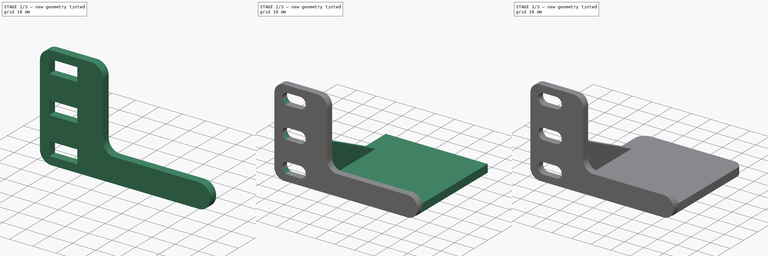
[diagram: build sequence overview — one tinted view per stage of 3, left to right]
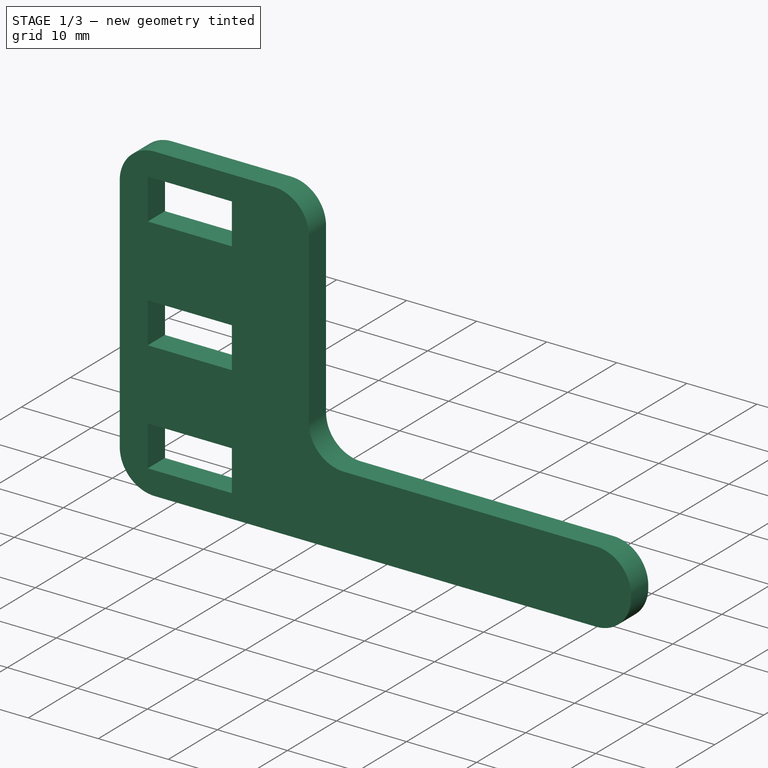
[diagram: stage 1 of 3 — iso view after this stage's code; geometry added in this stage tinted green]
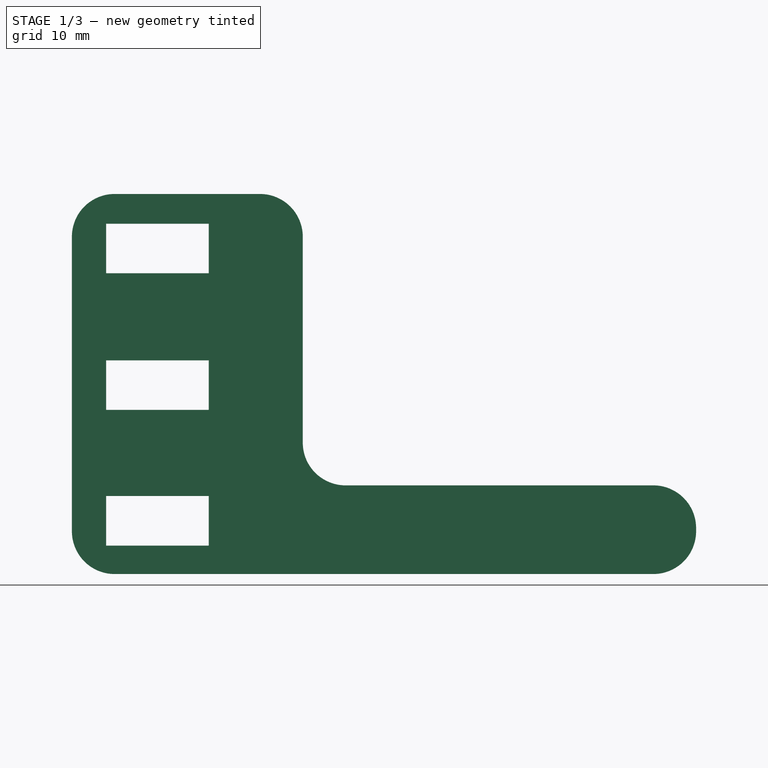
[diagram: stage 1 of 3 — front view after this stage's code; geometry added in this stage tinted green]
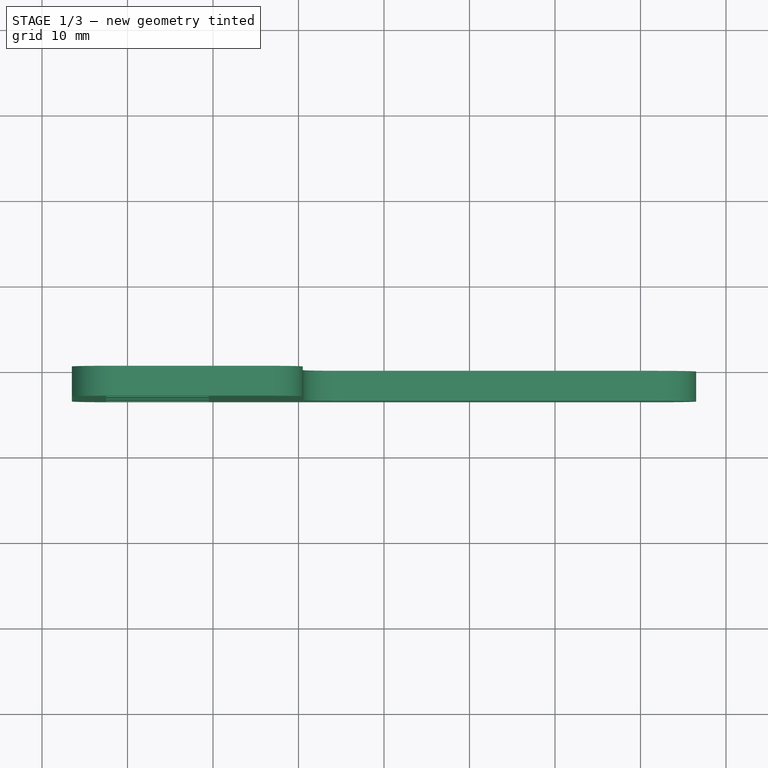
[diagram: stage 1 of 3 — top view after this stage's code; geometry added in this stage tinted green]
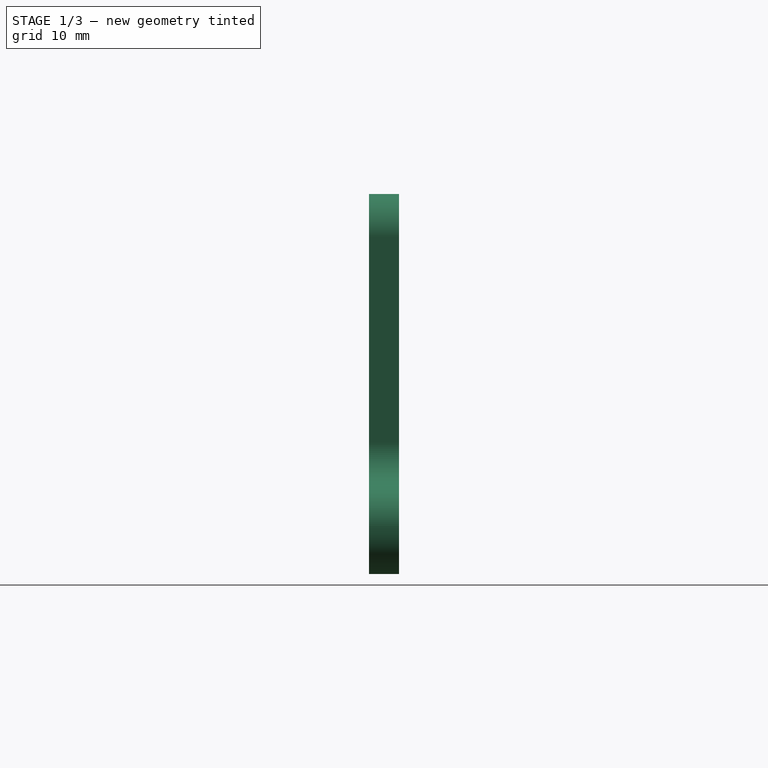
[diagram: stage 1 of 3 — right view after this stage's code; geometry added in this stage tinted green]
FCSTD DOCUMENT  (FreeCAD 1.0R39285 (Git))
Label: rack-mount-holder
License: All rights reserved
LicenseURL: http://en.wikipedia.org/wiki/All_rights_reserved
objects: Sketcher::SketchObject×3, Part::Extrusion×3, Part::Fillet×3, Part::Compound×1
note: 13 computed .brp shape members not serialized (recipe doc carries the construction recipe); baked Part::Feature solids carry a one-line shape summary decoded from their .brp

FEATURE [Part::Extrusion] Extrude
  Base = -> Sketch
  Dir = (0,-1,2e-16)
  DirMode = 2
  FaceMakerClass = Part::FaceMakerBullseye
  FaceMakerMode = 3
  LengthFwd = 3.5
  LengthRev = 0
  Solid = true
  Symmetric = false
FEATURE [Part::Fillet] Fillet  label="Round Outer"
  Base = -> Extrude
  EdgeLinks = -> Extrude [?Edge1,?Edge2,?Edge5,?Edge8,?Edge11,?Edge14]
  Edges = 6 edges r=5: [Edge1,Edge2,Edge5,Edge8,Edge11,Edge14]
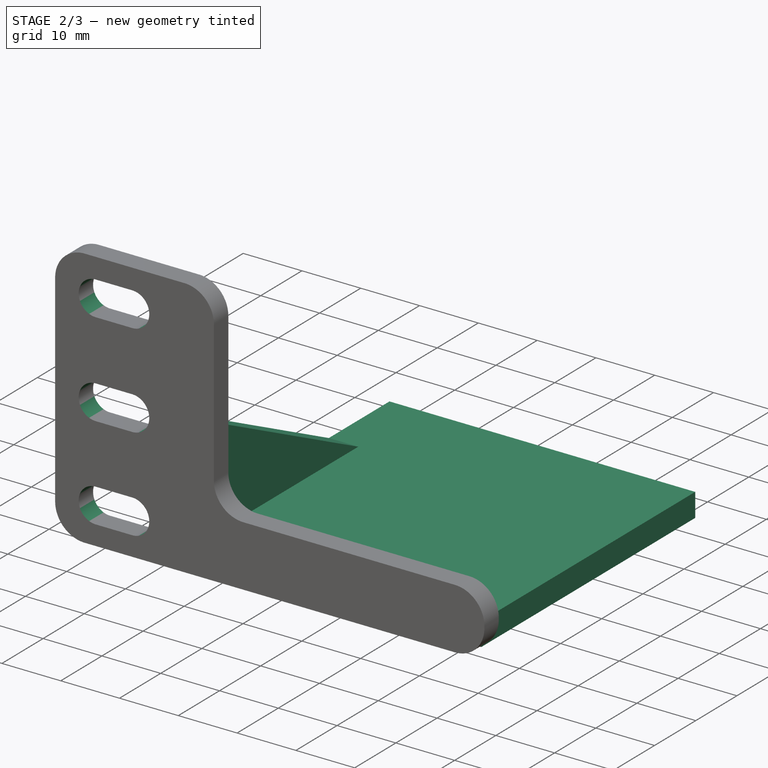
[diagram: stage 2 of 3 — iso view after this stage's code; geometry added in this stage tinted green]
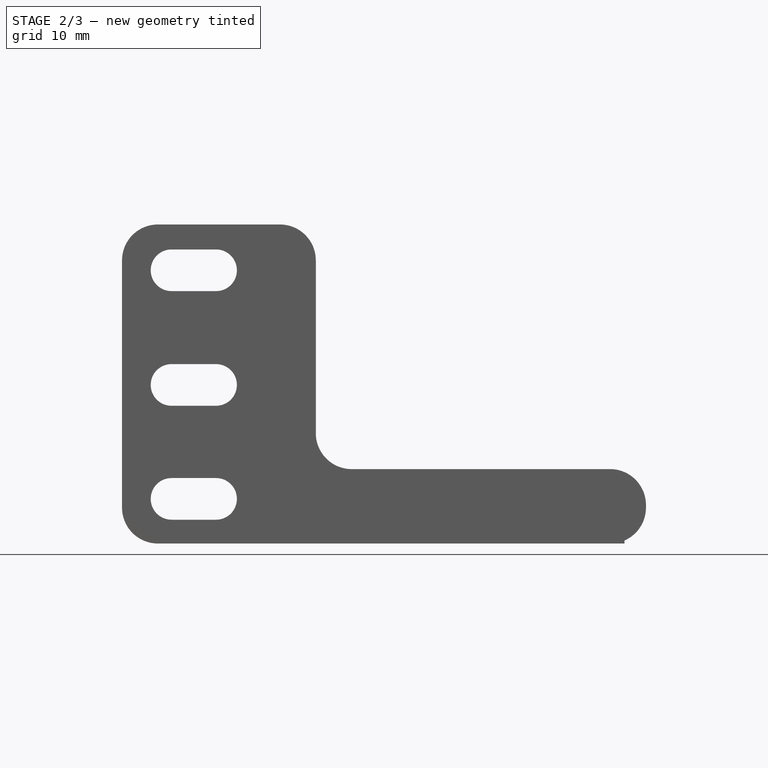
[diagram: stage 2 of 3 — front view after this stage's code; geometry added in this stage tinted green]
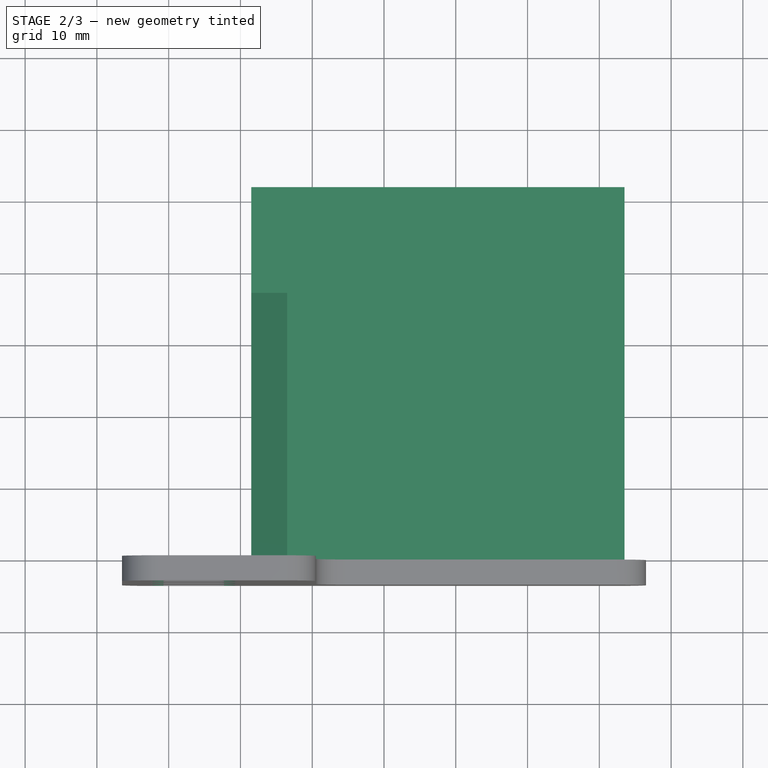
[diagram: stage 2 of 3 — top view after this stage's code; geometry added in this stage tinted green]
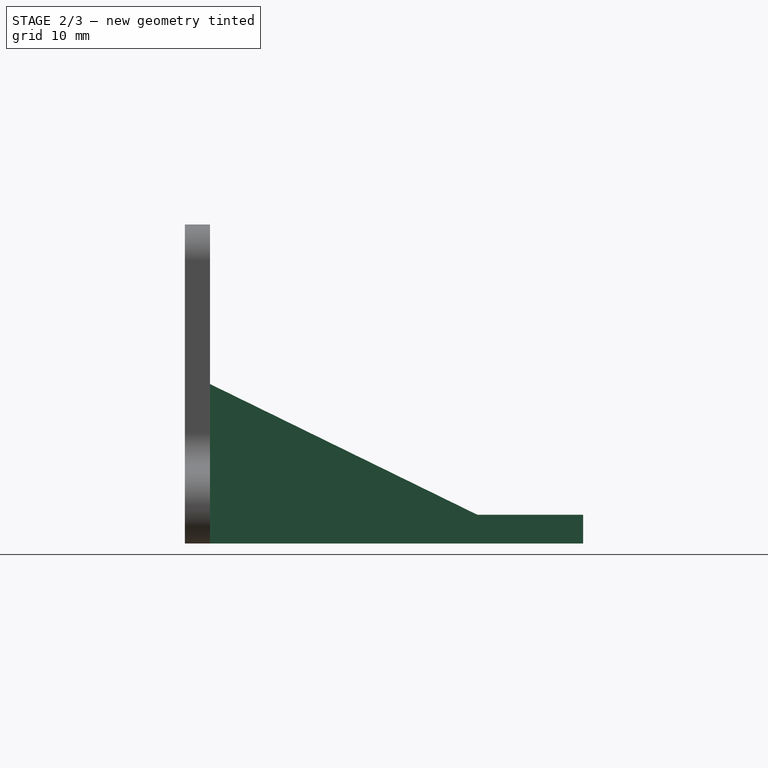
[diagram: stage 2 of 3 — right view after this stage's code; geometry added in this stage tinted green]
FEATURE [Sketcher::SketchObject] Sketch
  ArcFitTolerance = 0
  FullyConstrained = true
  MakeInternals = false
  Placement = pos=(0,0,0) rot=(1,0,0;1.5708rad)
  sketch-geometry (24):
    g0: GeomPoint [constr] X=0 Y=0 Z=0
    g1: LineSegment StartX=-32.5 StartY=18.745 StartZ=0 EndX=-20.5 EndY=18.745 EndZ=0
    g2: LineSegment StartX=-20.5 StartY=18.745 StartZ=0 EndX=-20.5 EndY=12.945 EndZ=0
    g3: LineSegment StartX=-20.5 StartY=12.945 StartZ=0 EndX=-32.5 EndY=12.945 EndZ=0
    g4: LineSegment StartX=-32.5 StartY=12.945 StartZ=0 EndX=-32.5 EndY=18.745 EndZ=0
    g5: LineSegment StartX=-32.5 StartY=2.77 StartZ=0 EndX=-20.5 EndY=2.77 EndZ=0
    g6: LineSegment StartX=-20.5 StartY=2.77 StartZ=0 EndX=-20.5 EndY=-3.03 EndZ=0
    g7: LineSegment StartX=-20.5 StartY=-3.03 StartZ=0 EndX=-32.5 EndY=-3.03 EndZ=0
    g8: LineSegment StartX=-32.5 StartY=-3.03 StartZ=0 EndX=-32.5 EndY=2.77 EndZ=0
    g9: LineSegment StartX=-32.5 StartY=-13.105 StartZ=0 EndX=-20.5 EndY=-13.105 EndZ=0
    g10: LineSegment StartX=-20.5 StartY=-13.105 StartZ=0 EndX=-20.5 EndY=-18.905 EndZ=0
    g11: LineSegment StartX=-20.5 StartY=-18.905 StartZ=0 EndX=-32.5 EndY=-18.905 EndZ=0
    g12: LineSegment StartX=-32.5 StartY=-18.905 StartZ=0 EndX=-32.5 EndY=-13.105 EndZ=0
    g13: LineSegment [constr] StartX=-36.5 StartY=22.225 StartZ=0 EndX=-36.5 EndY=-22.225 EndZ=0
    g14: LineSegment [constr] StartX=-36.5 StartY=-22.225 StartZ=0 EndX=36.5 EndY=-22.225 EndZ=0
    g15: LineSegment [constr] StartX=36.5 StartY=-22.225 StartZ=0 EndX=36.5 EndY=22.225 EndZ=0
    g16: LineSegment [constr] StartX=36.5 StartY=22.225 StartZ=0 EndX=-36.5 EndY=22.225 EndZ=0
    g17: GeomPoint [constr] X=0 Y=0 Z=0
    g18: LineSegment StartX=-9.5 StartY=22.225 StartZ=0 EndX=-9.5 EndY=-11.855 EndZ=0
    g19: LineSegment StartX=-9.5 StartY=-11.855 StartZ=0 EndX=36.5 EndY=-11.855 EndZ=0
    g20: LineSegment StartX=36.5 StartY=-11.855 StartZ=0 EndX=36.5 EndY=-22.225 EndZ=0
    g21: LineSegment StartX=36.5 StartY=-22.225 StartZ=0 EndX=-36.5 EndY=-22.225 EndZ=0
    g22: LineSegment StartX=-36.5 StartY=-22.225 StartZ=0 EndX=-36.5 EndY=22.225 EndZ=0
    g23: LineSegment StartX=-36.5 StartY=22.225 StartZ=0 EndX=-9.5 EndY=22.225 EndZ=0
  constraints (66):
    c: Coincident(g0,g-1)
    c: Coincident(g1,g2)
    c: Coincident(g2,g3)
    c: Coincident(g3,g4)
    c: Coincident(g4,g1)
    c: Horizontal(g1)
    c: Horizontal(g3)
    c: Vertical(g2)
    c: Vertical(g4)
    c: Coincident(g5,g6)
    c: Coincident(g6,g7)
    c: Coincident(g7,g8)
    c: Coincident(g8,g5)
    c: Horizontal(g5)
    c: Horizontal(g7)
    c: Vertical(g6)
    c: Vertical(g8)
    c: Coincident(g9,g10)
    c: Coincident(g10,g11)
    c: Coincident(g11,g12)
    c: Coincident(g12,g9)
    c: Horizontal(g9)
    c: Horizontal(g11)
    c: Vertical(g10)
    c: Vertical(g12)
    c: Distance(g1) = 12
    c: Distance(g4) = 5.8
    c: Equal(g5,g1)
    c: Equal(g9,g5)
    c: Equal(g8,g4)
    c: Equal(g12,g8)
    c: DistanceX(g3,g5) = 0
    c: DistanceX(g9,g7) = 0
    c: Distance(g5,g3) = 10.175
    c: Distance(g9,g7) = 10.075
    c: Coincident(g13,g14)
    c: Coincident(g14,g15)
    c: Coincident(g15,g16)
    c: Coincident(g16,g13)
    c: Horizontal(g14)
    c: Horizontal(g16)
    c: Vertical(g13)
    c: Vertical(g15)
    c: Symmetric(g14,g13,g17)
    c: Coincident(g17,g0)
    c: Distance(g15) = 44.45
    c: Distance(g16) = 73
    c: DistanceX(g13,g1) = 4
    c: DistanceY(g1,g13) = 3.48
    c: PointOnObject(g18,g16)
    c: Vertical(g18)
    c: Coincident(g19,g18)
    c: PointOnObject(g19,g15)
    c: Horizontal(g19)
    c: Coincident(g20,g19)
    c: Distance(g19) = 46
    c: Distance(g18) = 34.08
    c: Coincident(g21,g14)
    c: Horizontal(g21)
    c: Distance(g21) = 73
    c: Coincident(g22,g21)
    c: Vertical(g22)
    c: Distance(g22) = 44.45
    c: Coincident(g23,g22)
    c: Coincident(g23,g18)
    c: Coincident(g20,g21)
FEATURE [Sketcher::SketchObject] Sketch001
  ArcFitTolerance = 0
  FullyConstrained = true
  MakeInternals = false
  MapMode = 5
  Placement = pos=(0,0,0) rot=(0,0.707107,0.707107;3.14159rad)
  sketch-geometry (11):
    g0: LineSegment [constr] StartX=-36.5 StartY=22.225 StartZ=0 EndX=-36.5 EndY=-22.225 EndZ=0
    g1: LineSegment [constr] StartX=-36.5 StartY=-22.225 StartZ=0 EndX=36.5 EndY=-22.225 EndZ=0
    g2: LineSegment [constr] StartX=36.5 StartY=-22.225 StartZ=0 EndX=36.5 EndY=22.225 EndZ=0
    g3: LineSegment [constr] StartX=36.5 StartY=22.225 StartZ=0 EndX=-36.5 EndY=22.225 EndZ=0
    g4: GeomPoint [constr] X=0 Y=0 Z=0
    g5: LineSegment StartX=-33.5 StartY=-22.224 StartZ=0 EndX=18.5 EndY=-22.224 EndZ=0
    g6: LineSegment StartX=18.5 StartY=-22.224 StartZ=0 EndX=18.5 EndY=-18.224 EndZ=0
    g7: LineSegment StartX=18.5 StartY=-18.224 StartZ=0 EndX=-33.5 EndY=-18.224 EndZ=0
    g8: LineSegment StartX=-33.5 StartY=-18.224 StartZ=0 EndX=-33.5 EndY=-22.224 EndZ=0
    g9: LineSegment [constr] StartX=-33.5 StartY=-22.224 StartZ=0 EndX=-33.5 EndY=-22.225 EndZ=0
    g10: LineSegment [constr] StartX=-33.5 StartY=-22.224 StartZ=0 EndX=-36.5 EndY=-22.224 EndZ=0
  constraints (30):
    c: Coincident(g0,g1)
    c: Coincident(g1,g2)
    c: Coincident(g2,g3)
    c: Coincident(g3,g0)
    c: Horizontal(g1)
    c: Horizontal(g3)
    c: Vertical(g0)
    c: Vertical(g2)
    c: Symmetric(g1,g0,g4)
    c: Coincident(g4,g-1)
    c: Distance(g2) = 44.45
    c: Distance(g3) = 73
    c: Coincident(g5,g6)
    c: Coincident(g6,g7)
    c: Coincident(g7,g8)
    c: Coincident(g8,g5)
    c: Horizontal(g5)
    c: Horizontal(g7)
    c: Vertical(g6)
    c: Vertical(g8)
    c: Distance(g7) = 52
    c: Distance(g8) = 4
    c: Coincident(g9,g5)
    c: PointOnObject(g9,g1)
    c: Vertical(g9)
    c: Coincident(g10,g5)
    c: PointOnObject(g10,g0)
    c: Horizontal(g10)
    c: Distance(g10) = 3
    c: Distance(g9) = 0.001
FEATURE [Part::Extrusion] Extrude001  label="Extrude002"
  Base = -> Sketch001
  Dir = (0,1,-2e-16)
  DirMode = 2
  FaceMakerClass = Part::FaceMakerBullseye
  FaceMakerMode = 3
  LengthFwd = 52
  LengthRev = 0
  Solid = true
  Symmetric = false
FEATURE [Sketcher::SketchObject] Sketch002
  ArcFitTolerance = 0
  AttachmentSupport = -> [Fillet001]
  FullyConstrained = true
  MakeInternals = false
  MapMode = 5
  Placement = pos=(-18.5,0,-1.6e-15) rot=(0.57735,-0.57735,-0.57735;2.0944rad)
  sketch-geometry (8):
    g0: LineSegment [constr] StartX=-40.5 StartY=22.225 StartZ=0 EndX=-40.5 EndY=-22.225 EndZ=0
    g1: LineSegment [constr] StartX=-40.5 StartY=-22.225 StartZ=0 EndX=40.5 EndY=-22.225 EndZ=0
    g2: LineSegment [constr] StartX=40.5 StartY=-22.225 StartZ=0 EndX=40.5 EndY=22.225 EndZ=0
    g3: LineSegment [constr] StartX=40.5 StartY=22.225 StartZ=0 EndX=-40.5 EndY=22.225 EndZ=0
    g4: GeomPoint [constr] X=-1.8e-15 Y=6e-16 Z=0
    g5: LineSegment StartX=-1.8e-15 StartY=6e-16 StartZ=0 EndX=-1.8e-15 EndY=-18.23 EndZ=0
    g6: LineSegment StartX=-1.8e-15 StartY=-18.23 StartZ=0 EndX=-37.2816 EndY=-18.23 EndZ=0
    g7: LineSegment StartX=-37.2816 StartY=-18.23 StartZ=0 EndX=-1.8e-15 EndY=6e-16 EndZ=0
  constraints (20):
    c: Coincident(g0,g1)
    c: Coincident(g1,g2)
    c: Coincident(g2,g3)
    c: Coincident(g3,g0)
    c: Horizontal(g1)
    c: Horizontal(g3)
    c: Vertical(g0)
    c: Vertical(g2)
    c: Symmetric(g1,g0,g4)
    c: Coincident(g4,g-1)
    c: Distance(g2) = 44.45
    c: Distance(g3) = 81
    c: Coincident(g5,g4)
    c: Vertical(g5)
    c: Coincident(g6,g5)
    c: Horizontal(g6)
    c: Coincident(g7,g6)
    c: Coincident(g7,g5)
    c: Distance(g5) = 18.23
    c: Distance(g7) = 41.5
FEATURE [Part::Extrusion] Extrude002  label="Brace"
  Base = -> Sketch002
  Dir = (-1,0,0)
  DirMode = 2
  FaceMakerClass = Part::FaceMakerBullseye
  FaceMakerMode = 3
  LengthFwd = -5
  LengthRev = 0
  Solid = true
  Symmetric = false
FEATURE [Part::Fillet] Fillet002  label="Round inner"
  Base = -> Fillet
  EdgeLinks = -> Fillet [Edge61,Edge62,Edge63,Edge64,Edge65,Edge66,Edge67,Edge68,Edge69,Edge70,Edge71,Edge72]
  Edges = 12 edges r=2.89: [Edge61,Edge62,Edge63,Edge64,Edge65,Edge66,Edge67,Edge68,Edge69,Edge70,Edge71,Edge72]
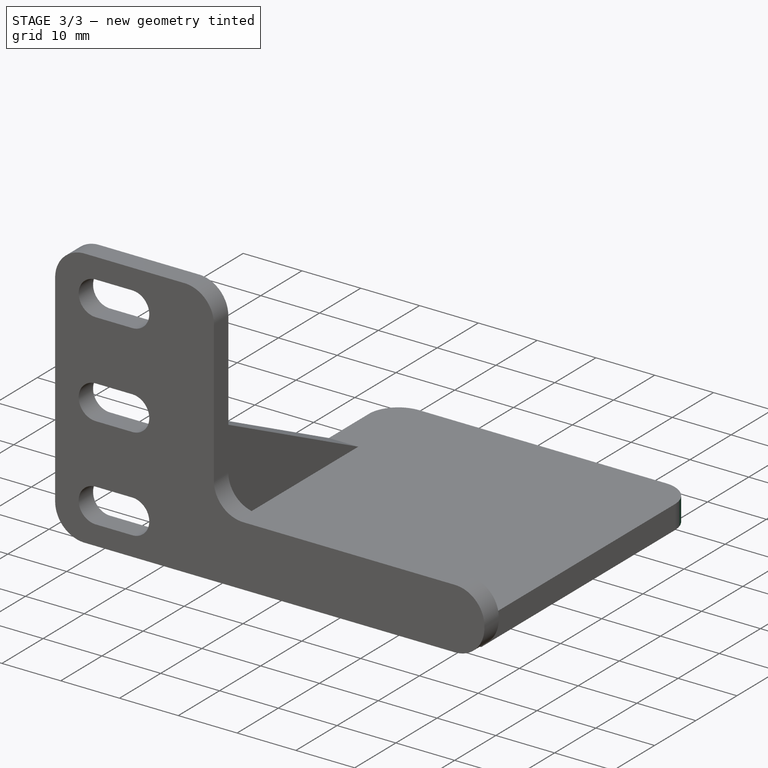
[diagram: stage 3 of 3 — iso view after this stage's code; geometry added in this stage tinted green]
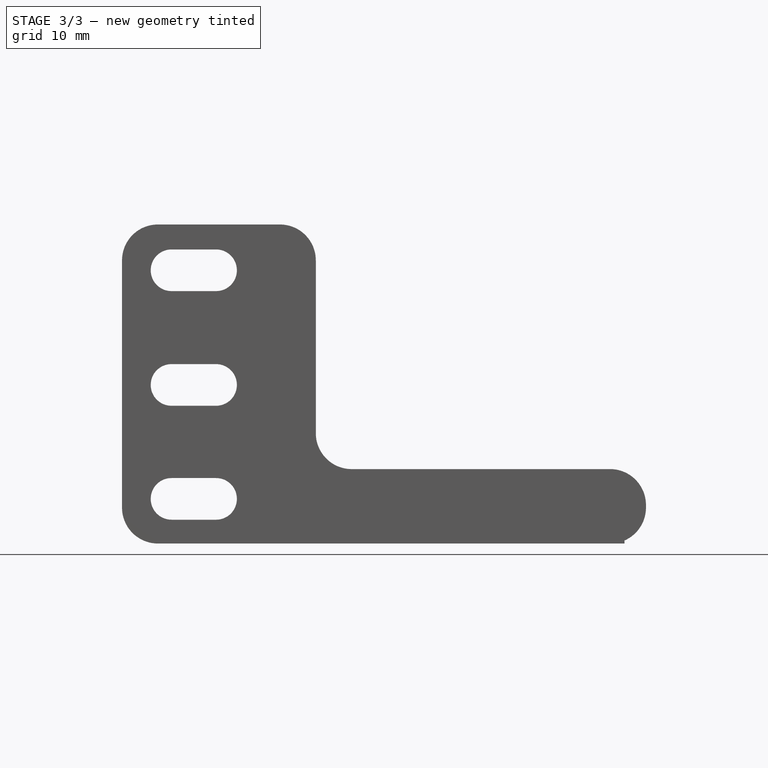
[diagram: stage 3 of 3 — front view after this stage's code; geometry added in this stage tinted green]
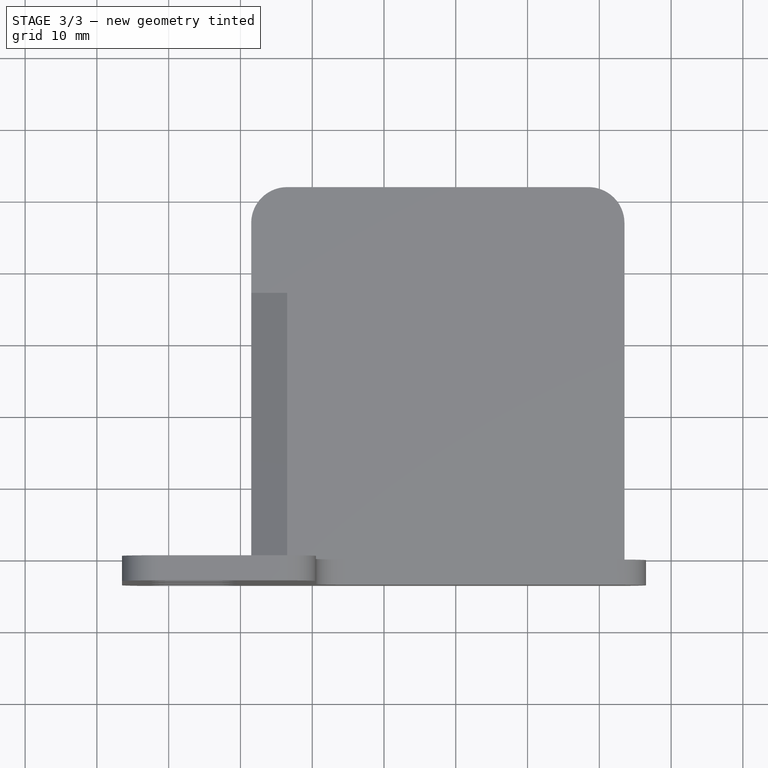
[diagram: stage 3 of 3 — top view after this stage's code; geometry added in this stage tinted green]
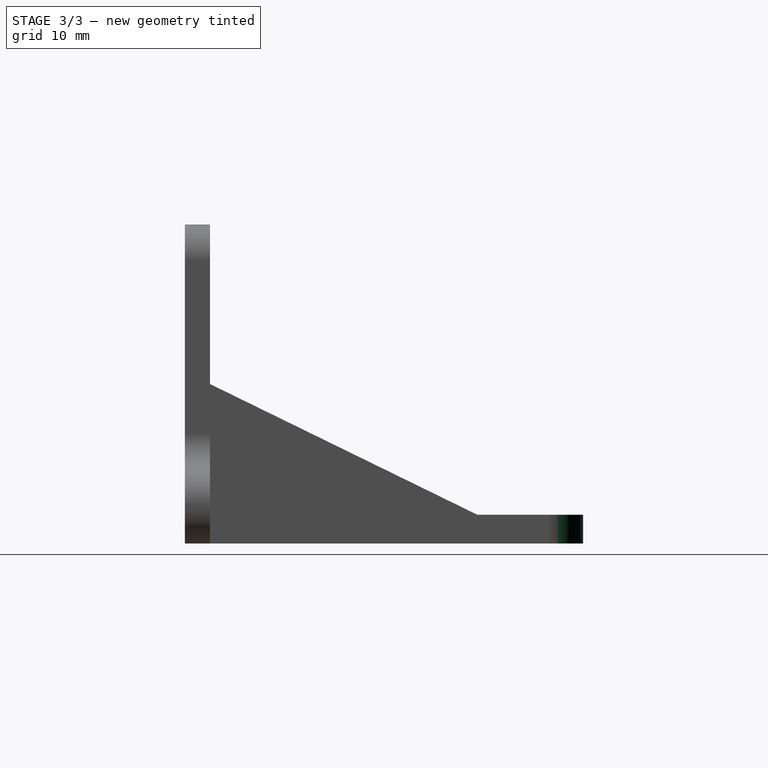
[diagram: stage 3 of 3 — right view after this stage's code; geometry added in this stage tinted green]
FEATURE [Part::Fillet] Fillet001  label="Holder"
  Base = -> Extrude001
  EdgeLinks = -> Extrude001 [Edge7,Edge12]
  Edges = 2 edges r=5: [Edge7,Edge12]
FEATURE [Part::Compound] Compound  label="Final"
  Links = -> [Extrude002,Fillet001,Fillet002]
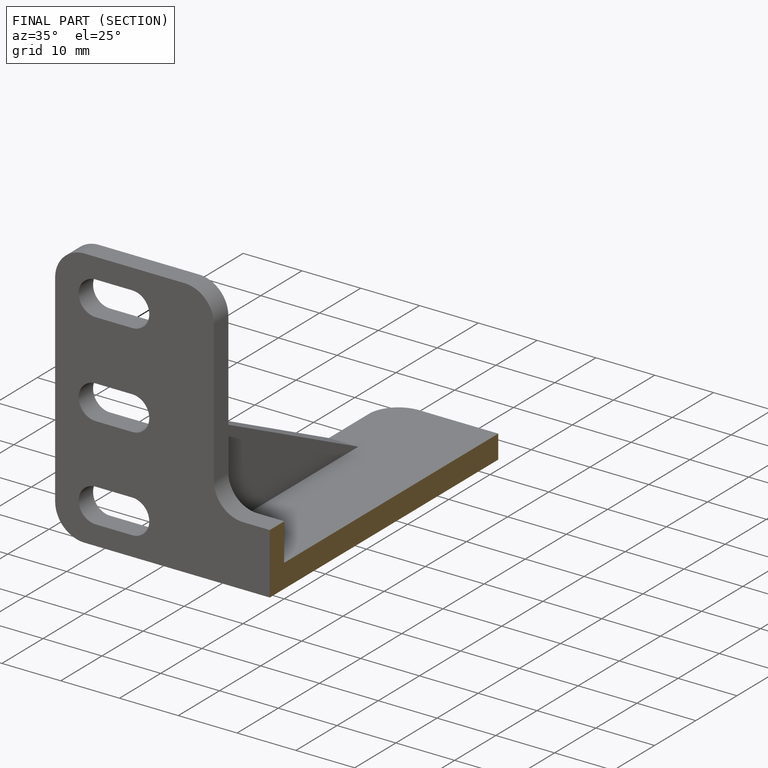
[diagram: finished part — half-section view (interior)]
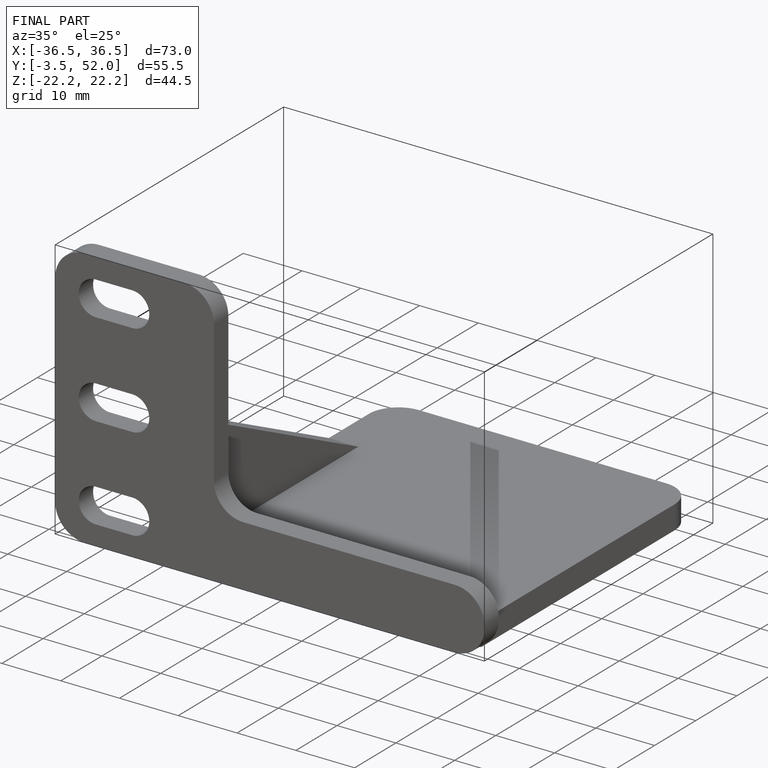
[diagram: finished part — iso view with bounding-box wireframe]
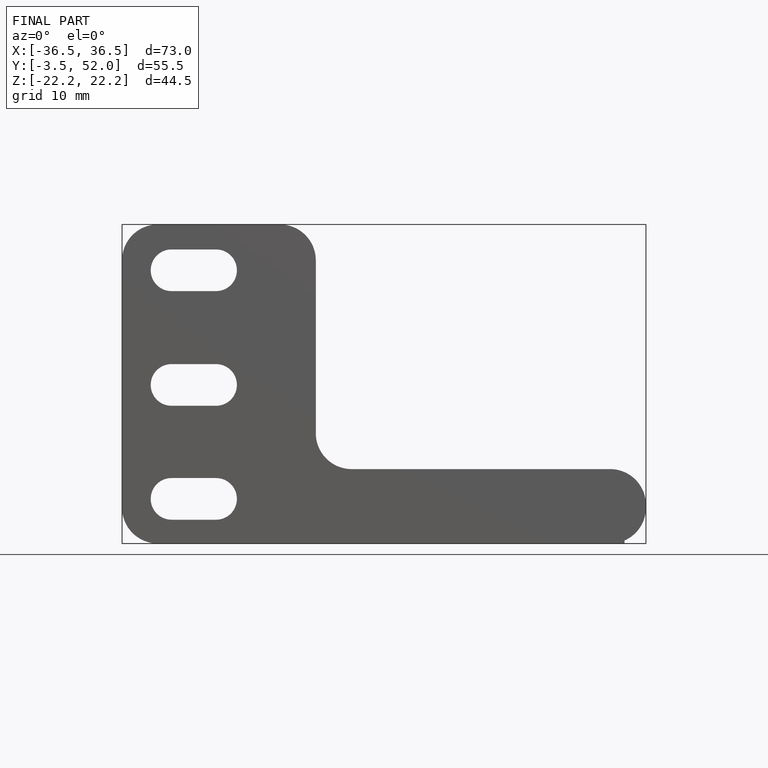
[diagram: finished part — front view with bounding-box wireframe]
